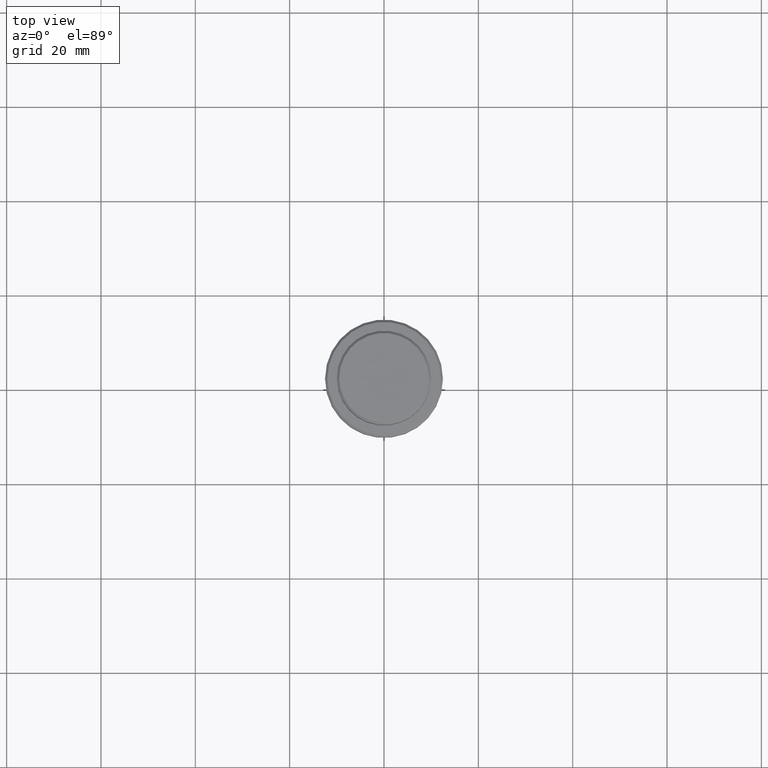
[diagram: clean part render]
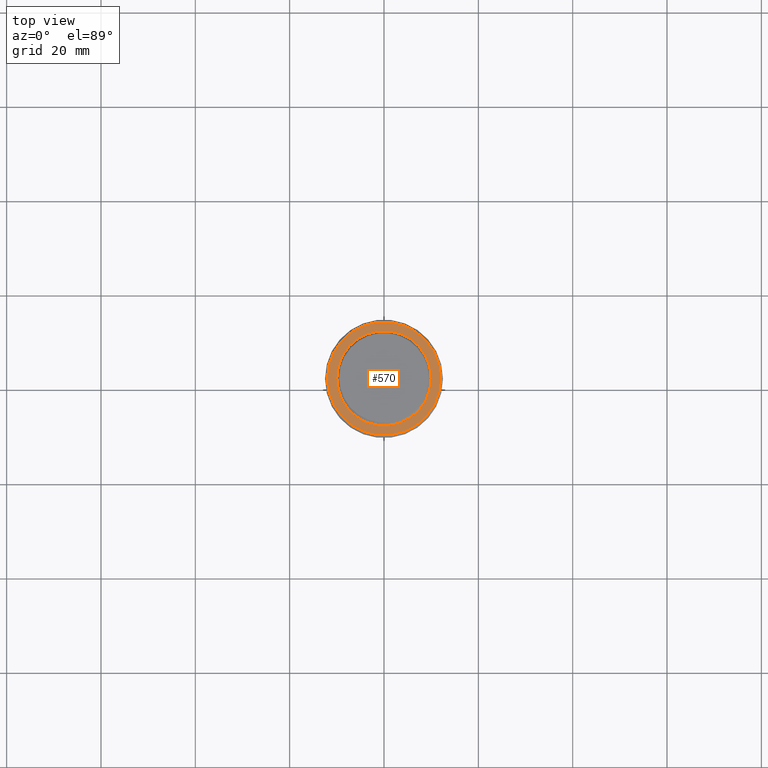
[diagram: same view with one face highlighted and labeled with its STEP entity id]
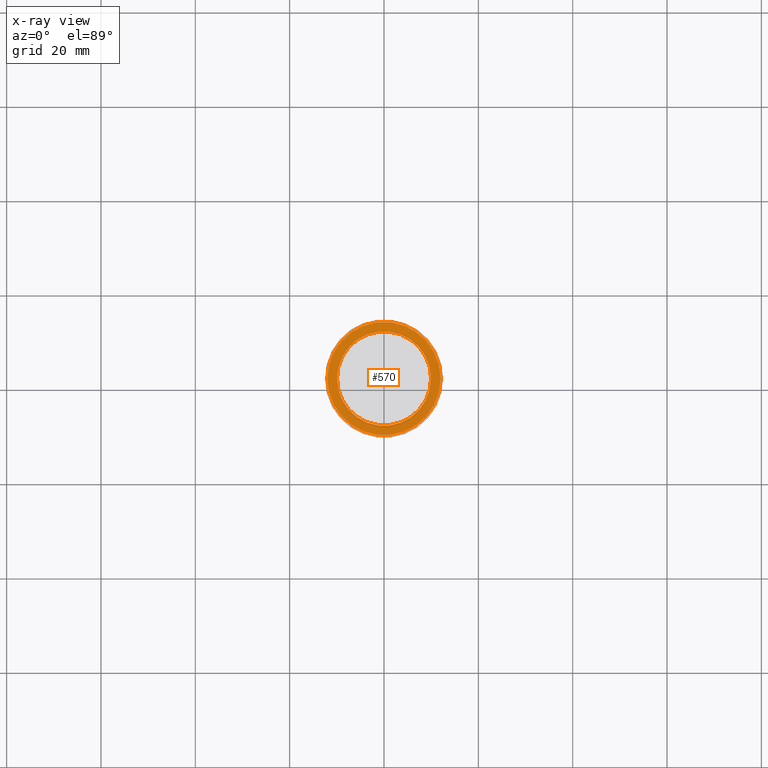
[diagram: x-ray of the same camera — body ghosted, the highlighted face saturated]
A machine part, top view. The second image highlights one B-rep face of the part: STEP entity #570.
The next image is the same camera in x-ray: the body ghosted, the highlighted face saturated — about 0% of this face is hidden behind the body in this view.
In plain terms, the highlighted planar face has unit normal (0, -0, 1).
Its self-contained STEP definition (entity closure, byte-faithful):
#44 = CARTESIAN_POINT ( 'NONE',  ( -12.00000000000002487, 0.000000000000000000, -9.000000000000001776 ) ) ;
#93 = CARTESIAN_POINT ( 'NONE',  ( 0.000000000000000000, 0.000000000000000000, -9.000000000000001776 ) ) ;
#107 = VERTEX_POINT ( 'NONE', #819 ) ;
#149 = VERTEX_POINT ( 'NONE', #44 ) ;
#150 = CARTESIAN_POINT ( 'NONE',  ( -9.999999999999994671, 1.224646799147352665E-15, -9.000000000000001776 ) ) ;
#313 = AXIS2_PLACEMENT_3D ( 'NONE', #93, #728, #1292 ) ;
#339 = DIRECTION ( 'NONE',  ( 1.000000000000000000, 0.000000000000000000, 0.000000000000000000 ) ) ;
#357 = AXIS2_PLACEMENT_3D ( 'NONE', #631, #1280, #412 ) ;
#368 = DIRECTION ( 'NONE',  ( 1.000000000000000000, 0.000000000000000000, 0.000000000000000000 ) ) ;
#412 = DIRECTION ( 'NONE',  ( 1.000000000000000000, 0.000000000000000000, 0.000000000000000000 ) ) ;
#449 = CIRCLE ( 'NONE', #674, 9.999999999999994671 ) ;
#487 = FACE_BOUND ( 'NONE', #710, .T. ) ;
#516 = AXIS2_PLACEMENT_3D ( 'NONE', #737, #1380, #723 ) ;
#570 = ADVANCED_FACE ( 'NONE', ( #703, #487 ), #708, .T. ) ;
#608 = CIRCLE ( 'NONE', #313, 9.999999999999994671 ) ;
#631 = CARTESIAN_POINT ( 'NONE',  ( 0.000000000000000000, 0.000000000000000000, -9.000000000000001776 ) ) ;
#659 = DIRECTION ( 'NONE',  ( 0.000000000000000000, 0.000000000000000000, -1.000000000000000000 ) ) ;
#674 = AXIS2_PLACEMENT_3D ( 'NONE', #769, #659, #339 ) ;
#703 = FACE_OUTER_BOUND ( 'NONE', #1066, .T. ) ;
#708 = PLANE ( 'NONE',  #1110 ) ;
#710 = EDGE_LOOP ( 'NONE', ( #1384, #901 ) ) ;
#723 = DIRECTION ( 'NONE',  ( 1.000000000000000000, 0.000000000000000000, 0.000000000000000000 ) ) ;
#728 = DIRECTION ( 'NONE',  ( 0.000000000000000000, 0.000000000000000000, -1.000000000000000000 ) ) ;
#737 = CARTESIAN_POINT ( 'NONE',  ( 0.000000000000000000, 0.000000000000000000, -9.000000000000001776 ) ) ;
#752 = ORIENTED_EDGE ( 'NONE', *, *, #1146, .T. ) ;
#769 = CARTESIAN_POINT ( 'NONE',  ( 0.000000000000000000, 0.000000000000000000, -9.000000000000001776 ) ) ;
#819 = CARTESIAN_POINT ( 'NONE',  ( 12.00000000000002487, 1.500192328955509115E-15, -9.000000000000001776 ) ) ;
#901 = ORIENTED_EDGE ( 'NONE', *, *, #1331, .T. ) ;
#929 = DIRECTION ( 'NONE',  ( 0.000000000000000000, -0.000000000000000000, 1.000000000000000000 ) ) ;
#956 = CIRCLE ( 'NONE', #357, 12.00000000000002487 ) ;
#1041 = VERTEX_POINT ( 'NONE', #150 ) ;
#1066 = EDGE_LOOP ( 'NONE', ( #1352, #752 ) ) ;
#1106 = CARTESIAN_POINT ( 'NONE',  ( 9.999999999999994671, 0.000000000000000000, -9.000000000000001776 ) ) ;
#1110 = AXIS2_PLACEMENT_3D ( 'NONE', #1360, #929, #368 ) ;
#1146 = EDGE_CURVE ( 'NONE', #107, #149, #956, .T. ) ;
#1225 = VERTEX_POINT ( 'NONE', #1106 ) ;
#1280 = DIRECTION ( 'NONE',  ( -0.000000000000000000, -0.000000000000000000, 1.000000000000000000 ) ) ;
#1292 = DIRECTION ( 'NONE',  ( 1.000000000000000000, 0.000000000000000000, 0.000000000000000000 ) ) ;
#1331 = EDGE_CURVE ( 'NONE', #1041, #1225, #449, .T. ) ;
#1352 = ORIENTED_EDGE ( 'NONE', *, *, #1377, .T. ) ;
#1360 = CARTESIAN_POINT ( 'NONE',  ( 0.000000000000000000, 9.499999999999994671, -9.000000000000001776 ) ) ;
#1368 = CIRCLE ( 'NONE', #516, 12.00000000000002487 ) ;
#1377 = EDGE_CURVE ( 'NONE', #149, #107, #1368, .T. ) ;
#1380 = DIRECTION ( 'NONE',  ( -0.000000000000000000, -0.000000000000000000, 1.000000000000000000 ) ) ;
#1384 = ORIENTED_EDGE ( 'NONE', *, *, #1404, .T. ) ;
#1404 = EDGE_CURVE ( 'NONE', #1225, #1041, #608, .T. ) ;